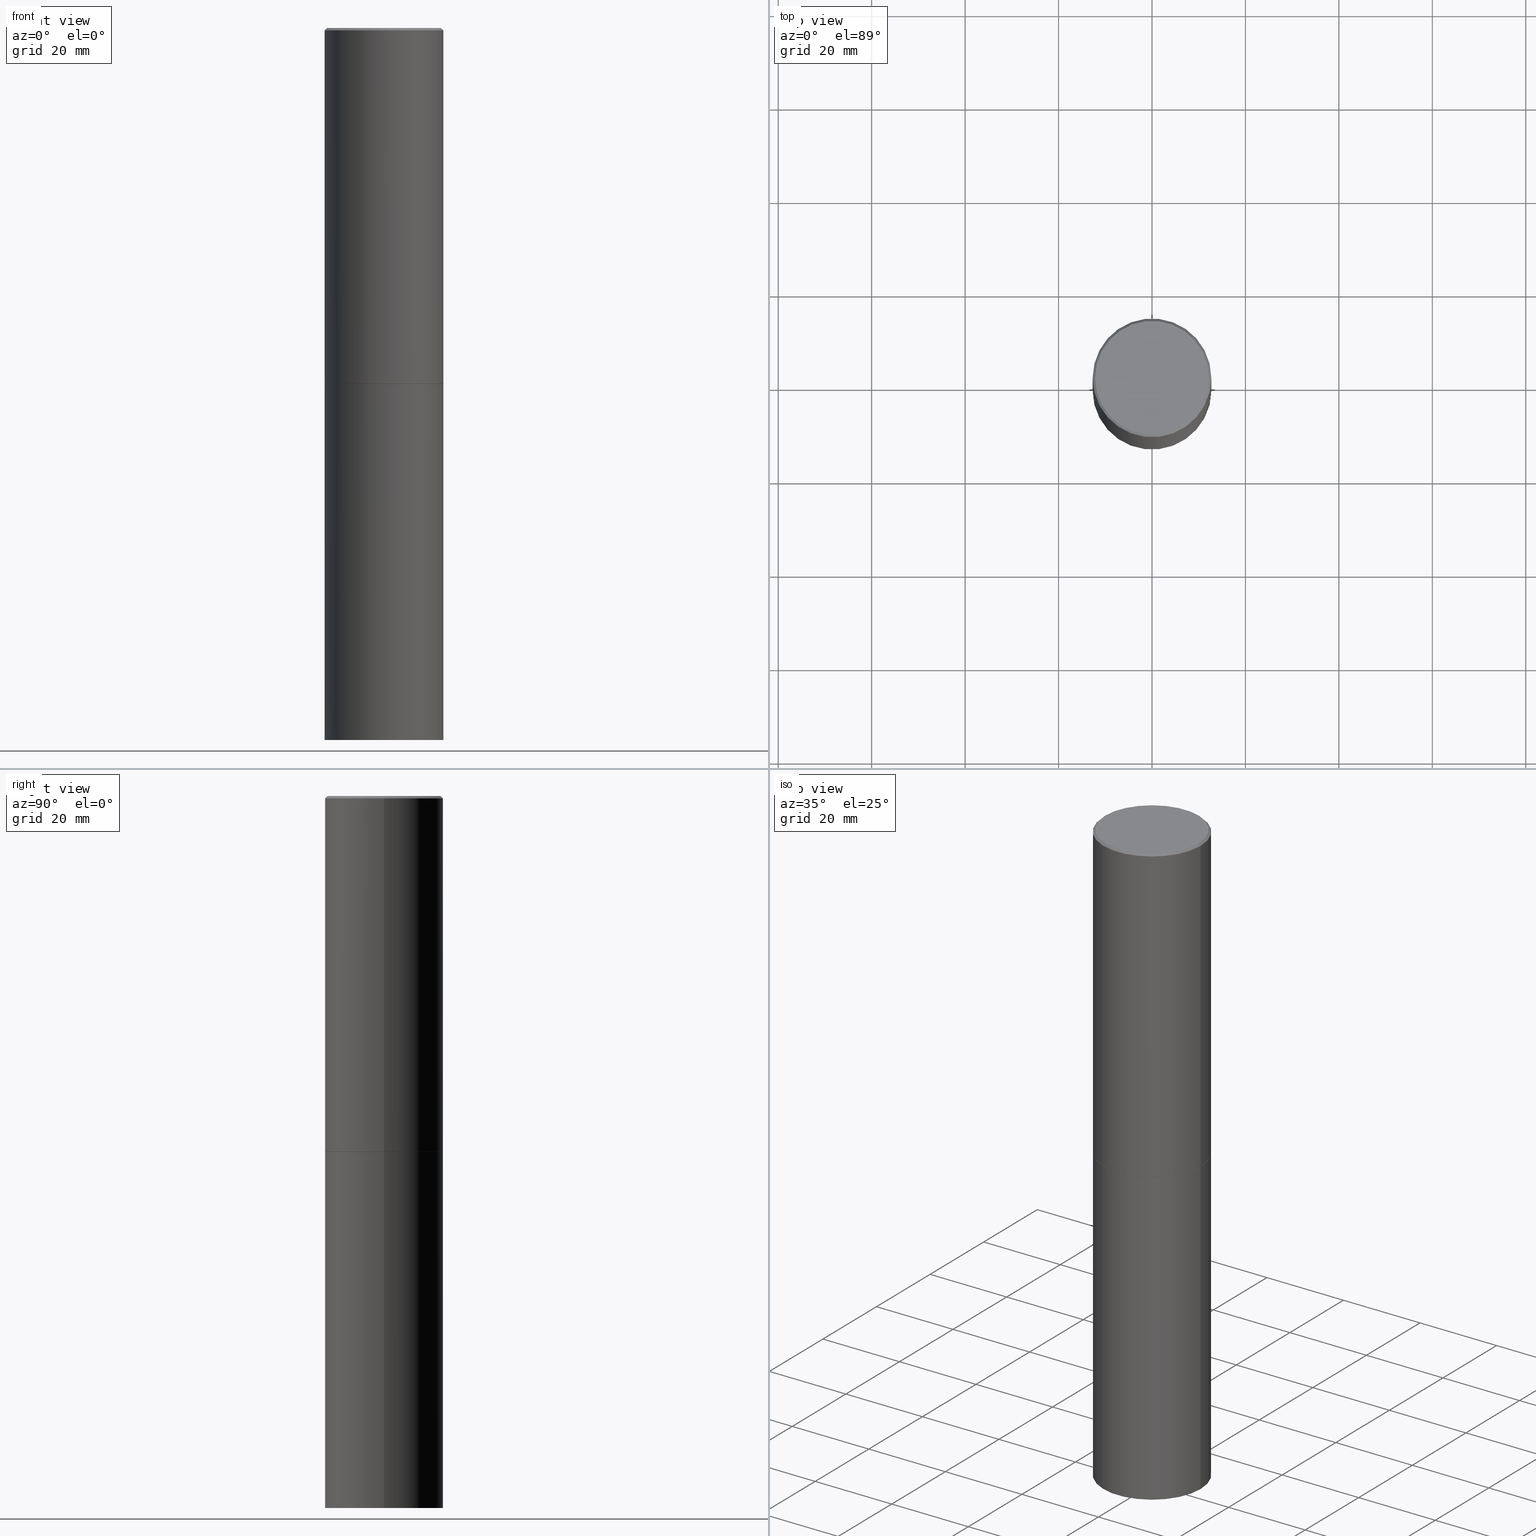
[diagram: canonical four-view strip — front | top / right | iso, engineering-drawing reading convention]
A machine part, canonical four-view strip (front | top / right | iso — engineering-drawing reading convention). The complete STEP part file that produces these views, byte-faithful:
ISO-10303-21;
HEADER;
FILE_DESCRIPTION (( 'STEP AP203' ),
    '1' );
FILE_NAME ('31869.STEP',
    '2023-03-21T20:33:02',
    ( '' ),
    ( '' ),
    'SwSTEP 2.0',
    'SolidWorks 2022',
    '' );
FILE_SCHEMA (( 'CONFIG_CONTROL_DESIGN' ));
ENDSEC;

DATA;
#1 = CALENDAR_DATE ( 2023, 21, 3 ) ;
#2 = ORIENTED_EDGE ( 'NONE', *, *, #33, .T. ) ;
#3 = DIRECTION ( 'NONE',  ( -2.445468806185136597E-29, 3.491481338843145583E-15, 1.000000000000000000 ) ) ;
#4 = EDGE_LOOP ( 'NONE', ( #335, #294, #114, #180 ) ) ;
#5 = CIRCLE ( 'NONE', #63, 0.4999999999999996669 ) ;
#6 = APPROVAL_ROLE ( '' ) ;
#7 = VERTEX_POINT ( 'NONE', #216 ) ;
#8 =( LENGTH_UNIT ( ) NAMED_UNIT ( * ) SI_UNIT ( $, .METRE. ) );
#9 = VERTEX_POINT ( 'NONE', #99 ) ;
#10 = CYLINDRICAL_SURFACE ( 'NONE', #184, 0.5000000000000000000 ) ;
#11 = ORIENTED_EDGE ( 'NONE', *, *, #312, .T. ) ;
#12 = AXIS2_PLACEMENT_3D ( 'NONE', #292, #171, #263 ) ;
#13 = LINE ( 'NONE', #53, #388 ) ;
#14 = SECURITY_CLASSIFICATION_LEVEL ( 'unclassified' ) ;
#15 = DIRECTION ( 'NONE',  ( 0.7071067811864267805, -2.468850131080992517E-15, 0.7071067811866682540 ) ) ;
#16 = CARTESIAN_POINT ( 'NONE',  ( 4.890937612370299433E-31, -6.982962677686328587E-17, -0.02000000000000010797 ) ) ;
#17 = CIRCLE ( 'NONE', #368, 0.4799999999999996492 ) ;
#18 = DIRECTION ( 'NONE',  ( -1.000000000000000000, 6.982962677686266711E-15, 0.000000000000000000 ) ) ;
#19 = CIRCLE ( 'NONE', #316, 0.4799999999999996492 ) ;
#20 = ADVANCED_FACE ( 'NONE', ( #126 ), #323, .F. ) ;
#21 = FACE_OUTER_BOUND ( 'NONE', #177, .T. ) ;
#22 = EDGE_CURVE ( 'NONE', #360, #145, #254, .T. ) ;
#23 = CARTESIAN_POINT ( 'NONE',  ( -0.4999999999999996669, 3.421651712066267691E-15, -0.02000000000000010797 ) ) ;
#24 = PERSON_AND_ORGANIZATION ( #81, #346 ) ;
#25 = FACE_OUTER_BOUND ( 'NONE', #305, .T. ) ;
#26 = AXIS2_PLACEMENT_3D ( 'NONE', #121, #175, #337 ) ;
#27 = PERSON_AND_ORGANIZATION ( #81, #346 ) ;
#28 = CARTESIAN_POINT ( 'NONE',  ( 4.890937612370299433E-31, -6.982962677686328587E-17, -0.02000000000000010797 ) ) ;
#29 = EDGE_CURVE ( 'NONE', #69, #146, #372, .T. ) ;
#30 = DIRECTION ( 'NONE',  ( -2.445468806185136597E-29, 3.491481338843145583E-15, 1.000000000000000000 ) ) ;
#31 = DIRECTION ( 'NONE',  ( 1.000000000000000000, -6.982962677686266711E-15, 0.000000000000000000 ) ) ;
#32 = ADVANCED_FACE ( 'NONE', ( #197 ), #206, .T. ) ;
#33 = EDGE_CURVE ( 'NONE', #7, #183, #45, .T. ) ;
#34 = APPROVAL_DATE_TIME ( #35, #229 ) ;
#35 = DATE_AND_TIME ( #298, #70 ) ;
#36 = VERTEX_POINT ( 'NONE', #44 ) ;
#37 = PERSON_AND_ORGANIZATION_ROLE ( 'creator' ) ;
#38 = ORIENTED_EDGE ( 'NONE', *, *, #133, .F. ) ;
#39 = CC_DESIGN_APPROVAL ( #50, ( #201 ) ) ;
#40 = COORDINATED_UNIVERSAL_TIME_OFFSET ( 5, 0, .BEHIND. ) ;
#41 = EDGE_LOOP ( 'NONE', ( #332, #299, #42, #339 ) ) ;
#42 = ORIENTED_EDGE ( 'NONE', *, *, #66, .F. ) ;
#43 = UNCERTAINTY_MEASURE_WITH_UNIT (LENGTH_MEASURE( 1.000000000000000082E-05 ), #65, 'distance_accuracy_value', 'NONE');
#44 = CARTESIAN_POINT ( 'NONE',  ( -0.4999999999999991673, -1.745740669421574566E-14, -6.000000000000000888 ) ) ;
#45 = CIRCLE ( 'NONE', #62, 0.5000000000000000000 ) ;
#46 = DATE_AND_TIME ( #317, #162 ) ;
#47 = LOCAL_TIME ( 16, 33, 2.000000000000000000, #265 ) ;
#48 = CARTESIAN_POINT ( 'NONE',  ( 1.108870314984995048E-27, -1.583172928714155233E-13, -45.34387485051596656 ) ) ;
#49 = CYLINDRICAL_SURFACE ( 'NONE', #310, 0.4999999999999998335 ) ;
#50 = APPROVAL ( #268, 'UNSPECIFIED' ) ;
#51 = CARTESIAN_POINT ( 'NONE',  ( 0.4999999999999998335, -3.491481338843132566E-15, 2.438088387897967336E-29 ) ) ;
#52 = AXIS2_PLACEMENT_3D ( 'NONE', #28, #293, #142 ) ;
#53 = CARTESIAN_POINT ( 'NONE',  ( 0.5000000000000000000, -3.491481338843133355E-15, 2.438088387897967896E-29 ) ) ;
#54 = CARTESIAN_POINT ( 'NONE',  ( 7.336406418555412032E-29, -1.047444401652943951E-14, -3.000000000000000888 ) ) ;
#55 = DATE_AND_TIME ( #289, #186 ) ;
#56 = DIRECTION ( 'NONE',  ( -2.445468806185136877E-29, 3.491481338843145188E-15, 1.000000000000000000 ) ) ;
#57 = DIRECTION ( 'NONE',  ( 1.000000000000000000, -6.982962677686269077E-15, 0.000000000000000000 ) ) ;
#58 = CLOSED_SHELL ( 'NONE', ( #210, #128, #32, #178, #378, #319, #196, #172 ) ) ;
#59 = CIRCLE ( 'NONE', #324, 0.4989999999999999991 ) ;
#60 = CYLINDRICAL_SURFACE ( 'NONE', #290, 0.4999999999999998335 ) ;
#61 = CARTESIAN_POINT ( 'NONE',  ( 4.890937612370299433E-31, -6.982962677686328587E-17, -0.02000000000000010797 ) ) ;
#62 = AXIS2_PLACEMENT_3D ( 'NONE', #376, #223, #315 ) ;
#63 = AXIS2_PLACEMENT_3D ( 'NONE', #16, #374, #78 ) ;
#64 = EDGE_LOOP ( 'NONE', ( #115, #340, #273, #119 ) ) ;
#65 =( CONVERSION_BASED_UNIT ( 'INCH', #301 ) LENGTH_UNIT ( ) NAMED_UNIT ( #366 ) );
#66 = EDGE_CURVE ( 'NONE', #146, #360, #274, .T. ) ;
#67 = ORIENTED_EDGE ( 'NONE', *, *, #133, .T. ) ;
#68 = PERSON_AND_ORGANIZATION ( #81, #346 ) ;
#69 = VERTEX_POINT ( 'NONE', #221 ) ;
#70 = LOCAL_TIME ( 16, 33, 2.000000000000000000, #40 ) ;
#71 = ORIENTED_EDGE ( 'NONE', *, *, #120, .F. ) ;
#72 = VERTEX_POINT ( 'NONE', #158 ) ;
#73 = FACE_OUTER_BOUND ( 'NONE', #213, .T. ) ;
#74 = CONICAL_SURFACE ( 'NONE', #231, 0.4989999999999999991, 0.7853981633972775267 ) ;
#75 = CARTESIAN_POINT ( 'NONE',  ( -5.848269620656593019E-18, -2.085739764137040965E-14, -5.973796110358482458 ) ) ;
#76 = MANIFOLD_SOLID_BREP ( 'Body-Move/Copy2[1]', #224 ) ;
#77 = CARTESIAN_POINT ( 'NONE',  ( -3.131554243005659264E-46, 4.471029511141341874E-32, 1.280553747030123384E-17 ) ) ;
#78 = DIRECTION ( 'NONE',  ( 1.000000000000000000, -6.982962677686266711E-15, 0.000000000000000000 ) ) ;
#79 = CIRCLE ( 'NONE', #95, 0.4989999999999999991 ) ;
#80 = DIRECTION ( 'NONE',  ( 2.445468806185136597E-29, -3.491481338843145583E-15, -1.000000000000000000 ) ) ;
#81 = PERSON ( 'UNSPECIFIED', 'UNSPECIFIED', 'UNSPECIFIED', ('UNSPECIFIED'), ('UNSPECIFIED'), ('UNSPECIFIED') ) ;
#82 = DIRECTION ( 'NONE',  ( -2.445468806185136597E-29, 3.491481338843145583E-15, 1.000000000000000000 ) ) ;
#83 = MANIFOLD_SOLID_BREP ( 'Body-Move/Copy2[2]', #58 ) ;
#84 = LINE ( 'NONE', #260, #106 ) ;
#85 = CARTESIAN_POINT ( 'NONE',  ( -0.5000000000000000000, 3.552713678800500929E-15, -2.459467545127452891E-29 ) ) ;
#86 = DIRECTION ( 'NONE',  ( -2.445468806185136597E-29, 3.491481338843145583E-15, 1.000000000000000000 ) ) ;
#87 = FACE_OUTER_BOUND ( 'NONE', #94, .T. ) ;
#88 = CARTESIAN_POINT ( 'NONE',  ( 0.000000000000000000, 0.000000000000000000, 0.000000000000000000 ) ) ;
#89 = ORIENTED_EDGE ( 'NONE', *, *, #222, .T. ) ;
#90 = VECTOR ( 'NONE', #130, 39.37007874015748854 ) ;
#91 = APPROVAL_PERSON_ORGANIZATION ( #27, #233, #190 ) ;
#92 = ORIENTED_EDGE ( 'NONE', *, *, #204, .F. ) ;
#93 = ORIENTED_EDGE ( 'NONE', *, *, #22, .T. ) ;
#94 = EDGE_LOOP ( 'NONE', ( #365, #208, #89, #139 ) ) ;
#95 = AXIS2_PLACEMENT_3D ( 'NONE', #381, #138, #390 ) ;
#96 = EDGE_LOOP ( 'NONE', ( #308, #211, #67, #209 ) ) ;
#97 = EDGE_CURVE ( 'NONE', #72, #7, #13, .T. ) ;
#98 = PLANE ( 'NONE',  #330 ) ;
#99 = CARTESIAN_POINT ( 'NONE',  ( -0.4799999999999996492, 3.386736898677836436E-15, 1.280553747027767124E-17 ) ) ;
#100 = AXIS2_PLACEMENT_3D ( 'NONE', #220, #193, #311 ) ;
#101 = AXIS2_PLACEMENT_3D ( 'NONE', #259, #174, #318 ) ;
#102 = CARTESIAN_POINT ( 'NONE',  ( -0.4999999999999996669, 3.421651712066267691E-15, -0.02000000000000010797 ) ) ;
#103 = DIRECTION ( 'NONE',  ( -2.445468806185136877E-29, 3.491481338843145188E-15, 1.000000000000000000 ) ) ;
#104 = CARTESIAN_POINT ( 'NONE',  ( 1.108870314984995048E-27, -1.583172928714155233E-13, -45.34387485051596656 ) ) ;
#105 = PERSON_AND_ORGANIZATION_ROLE ( 'classification_officer' ) ;
#106 = VECTOR ( 'NONE', #228, 39.37007874015748143 ) ;
#107 = CARTESIAN_POINT ( 'NONE',  ( -3.131554243005659264E-46, 4.471029511141341874E-32, 1.280553747030123384E-17 ) ) ;
#108 = COORDINATED_UNIVERSAL_TIME_OFFSET ( 5, 0, .BEHIND. ) ;
#109 = DIRECTION ( 'NONE',  ( -0.7071067811864267805, 7.493145998869918709E-15, 0.7071067811866682540 ) ) ;
#110 = PLANE ( 'NONE',  #12 ) ;
#111 = DIRECTION ( 'NONE',  ( 1.000000000000000000, -6.982962677686269077E-15, 0.000000000000000000 ) ) ;
#112 = FACE_OUTER_BOUND ( 'NONE', #189, .T. ) ;
#113 = DATE_AND_TIME ( #1, #47 ) ;
#114 = ORIENTED_EDGE ( 'NONE', *, *, #159, .T. ) ;
#115 = ORIENTED_EDGE ( 'NONE', *, *, #312, .F. ) ;
#116 = PERSON_AND_ORGANIZATION ( #81, #346 ) ;
#117 = ORIENTED_EDGE ( 'NONE', *, *, #120, .T. ) ;
#118 = FACE_OUTER_BOUND ( 'NONE', #64, .T. ) ;
#119 = ORIENTED_EDGE ( 'NONE', *, *, #199, .F. ) ;
#120 = EDGE_CURVE ( 'NONE', #154, #36, #344, .T. ) ;
#121 = CARTESIAN_POINT ( 'NONE',  ( 0.000000000000000000, 0.000000000000000000, 0.000000000000000000 ) ) ;
#122 = EDGE_CURVE ( 'NONE', #72, #36, #357, .T. ) ;
#123 = ORIENTED_EDGE ( 'NONE', *, *, #140, .F. ) ;
#124 = CARTESIAN_POINT ( 'NONE',  ( 0.5000000000000000000, -1.396243387403372828E-14, -2.999000000000000554 ) ) ;
#125 = APPROVAL_DATE_TIME ( #55, #233 ) ;
#126 = FACE_OUTER_BOUND ( 'NONE', #244, .T. ) ;
#127 = ORIENTED_EDGE ( 'NONE', *, *, #159, .F. ) ;
#128 = ADVANCED_FACE ( 'NONE', ( #21 ), #49, .T. ) ;
#129 = VECTOR ( 'NONE', #15, 39.37007874015748143 ) ;
#130 = DIRECTION ( 'NONE',  ( -0.9986295347545742773, 6.790662755453662155E-15, -0.05233595624293820026 ) ) ;
#131 = DIRECTION ( 'NONE',  ( 2.438088387897960049E-29, -3.491481338843145188E-15, -1.000000000000000000 ) ) ;
#132 = FACE_OUTER_BOUND ( 'NONE', #41, .T. ) ;
#133 = EDGE_CURVE ( 'NONE', #369, #145, #5, .T. ) ;
#134 = AXIS2_PLACEMENT_3D ( 'NONE', #342, #250, #18 ) ;
#135 = AXIS2_PLACEMENT_3D ( 'NONE', #232, #379, #169 ) ;
#136 = CARTESIAN_POINT ( 'NONE',  ( 7.336406418555412032E-29, -1.047444401652943951E-14, -3.000000000000000888 ) ) ;
#137 = CC_DESIGN_SECURITY_CLASSIFICATION ( #338, ( #201 ) ) ;
#138 = DIRECTION ( 'NONE',  ( -2.445468806185136597E-29, 3.491481338843145583E-15, 1.000000000000000000 ) ) ;
#139 = ORIENTED_EDGE ( 'NONE', *, *, #313, .T. ) ;
#140 = EDGE_CURVE ( 'NONE', #36, #72, #389, .T. ) ;
#141 = CARTESIAN_POINT ( 'NONE',  ( -0.5000000000000000000, -1.215895234599365439E-14, -3.000000000000000444 ) ) ;
#142 = DIRECTION ( 'NONE',  ( -1.000000000000000000, 6.982962677686266711E-15, 0.000000000000000000 ) ) ;
#143 = CIRCLE ( 'NONE', #135, 0.5000000000000000000 ) ;
#144 = DIRECTION ( 'NONE',  ( 1.000000000000000000, -6.982962677686266711E-15, 4.876176775795935793E-29 ) ) ;
#145 = VERTEX_POINT ( 'NONE', #102 ) ;
#146 = VERTEX_POINT ( 'NONE', #124 ) ;
#147 = PERSON_AND_ORGANIZATION ( #81, #346 ) ;
#148 = ORIENTED_EDGE ( 'NONE', *, *, #66, .T. ) ;
#149 = AXIS2_PLACEMENT_3D ( 'NONE', #61, #86, #31 ) ;
#150 = CALENDAR_DATE ( 2023, 21, 3 ) ;
#151 = VERTEX_POINT ( 'NONE', #343 ) ;
#152 = EDGE_CURVE ( 'NONE', #9, #302, #17, .T. ) ;
#153 = APPLICATION_PROTOCOL_DEFINITION ( 'international standard', 'config_control_design', 1994, #236 ) ;
#154 = VERTEX_POINT ( 'NONE', #194 ) ;
#155 = CARTESIAN_POINT ( 'NONE',  ( 7.333960949749226429E-29, -1.047095253519059492E-14, -2.999000000000000554 ) ) ;
#156 = CONICAL_SURFACE ( 'NONE', #380, 0.4989999999999999991, 0.7853981633972775267 ) ;
#157 = DATE_TIME_ROLE ( 'classification_date' ) ;
#158 = CARTESIAN_POINT ( 'NONE',  ( 0.4999999999999991673, -2.437913703194463533E-14, -6.000000000000000888 ) ) ;
#159 = EDGE_CURVE ( 'NONE', #146, #369, #314, .T. ) ;
#160 = DIRECTION ( 'NONE',  ( 1.000000000000000000, -6.982962677686267499E-15, 4.876176775795936353E-29 ) ) ;
#161 = DIRECTION ( 'NONE',  ( -2.445468806185136877E-29, 3.491481338843145188E-15, 1.000000000000000000 ) ) ;
#162 = LOCAL_TIME ( 16, 33, 2.000000000000000000, #248 ) ;
#163 = CC_DESIGN_APPROVAL ( #233, ( #338 ) ) ;
#164 = CARTESIAN_POINT ( 'NONE',  ( 3.351822085289405181E-15, 0.4799999999999996492, -1.669508273909558064E-15 ) ) ;
#165 = CC_DESIGN_PERSON_AND_ORGANIZATION_ASSIGNMENT ( #168, #105, ( #338 ) ) ;
#166 = ADVANCED_FACE ( 'NONE', ( #73 ), #304, .F. ) ;
#167 = DIRECTION ( 'NONE',  ( -2.445468806185136597E-29, 3.491481338843145583E-15, 1.000000000000000000 ) ) ;
#168 = PERSON_AND_ORGANIZATION ( #81, #346 ) ;
#169 = DIRECTION ( 'NONE',  ( 1.000000000000000000, -6.982962677686266711E-15, 0.000000000000000000 ) ) ;
#170 = APPROVAL_STATUS ( 'not_yet_approved' ) ;
#171 = DIRECTION ( 'NONE',  ( 2.438088387897960049E-29, -3.491481338843145188E-15, -1.000000000000000000 ) ) ;
#172 = ADVANCED_FACE ( 'NONE', ( #345 ), #98, .F. ) ;
#173 = CARTESIAN_POINT ( 'NONE',  ( 0.000000000000000000, 0.000000000000000000, 0.000000000000000000 ) ) ;
#174 = DIRECTION ( 'NONE',  ( -2.445468806185136597E-29, 3.491481338843145583E-15, 1.000000000000000000 ) ) ;
#175 = DIRECTION ( 'NONE',  ( -2.445468806185136597E-29, 3.491481338843145583E-15, 1.000000000000000000 ) ) ;
#176 = VECTOR ( 'NONE', #255, 39.37007874015748143 ) ;
#177 = EDGE_LOOP ( 'NONE', ( #148, #93, #38, #127 ) ) ;
#178 = ADVANCED_FACE ( 'NONE', ( #87 ), #252, .T. ) ;
#179 =( NAMED_UNIT ( * ) PLANE_ANGLE_UNIT ( ) SI_UNIT ( $, .RADIAN. ) );
#180 = ORIENTED_EDGE ( 'NONE', *, *, #313, .F. ) ;
#181 = PERSON_AND_ORGANIZATION ( #81, #346 ) ;
#182 = ORIENTED_EDGE ( 'NONE', *, *, #192, .T. ) ;
#183 = VERTEX_POINT ( 'NONE', #141 ) ;
#184 = AXIS2_PLACEMENT_3D ( 'NONE', #88, #3, #144 ) ;
#185 = AXIS2_PLACEMENT_3D ( 'NONE', #275, #371, #251 ) ;
#186 = LOCAL_TIME ( 16, 33, 2.000000000000000000, #108 ) ;
#187 = CARTESIAN_POINT ( 'NONE',  ( 0.000000000000000000, 0.000000000000000000, 0.000000000000000000 ) ) ;
#188 = EDGE_LOOP ( 'NONE', ( #245, #267 ) ) ;
#189 = EDGE_LOOP ( 'NONE', ( #238, #266 ) ) ;
#190 = APPROVAL_ROLE ( '' ) ;
#191 = CARTESIAN_POINT ( 'NONE',  ( -0.4999999999999998335, 3.552713678800499746E-15, -2.459467545127452330E-29 ) ) ;
#192 = EDGE_CURVE ( 'NONE', #151, #69, #79, .T. ) ;
#193 = DIRECTION ( 'NONE',  ( -2.445468806185136597E-29, 3.491481338843145583E-15, 1.000000000000000000 ) ) ;
#194 = CARTESIAN_POINT ( 'NONE',  ( 1.461281586724088411E-28, -2.085154937174960621E-14, -5.973796110358482458 ) ) ;
#195 = DIRECTION ( 'NONE',  ( 2.445468806185136597E-29, -3.491481338843145583E-15, -1.000000000000000000 ) ) ;
#196 = ADVANCED_FACE ( 'NONE', ( #112 ), #350, .F. ) ;
#197 = FACE_OUTER_BOUND ( 'NONE', #96, .T. ) ;
#198 = DIRECTION ( 'NONE',  ( -2.438088387897960049E-29, 3.491481338843145188E-15, 1.000000000000000000 ) ) ;
#199 = EDGE_CURVE ( 'NONE', #183, #7, #262, .T. ) ;
#200 = CARTESIAN_POINT ( 'NONE',  ( 7.336406418555412032E-29, -1.047444401652943951E-14, -3.000000000000000888 ) ) ;
#201 = PRODUCT_DEFINITION_FORMATION_WITH_SPECIFIED_SOURCE ( 'ANY', '', #348, .NOT_KNOWN. ) ;
#202 = CARTESIAN_POINT ( 'NONE',  ( 0.4999999999999996669, -3.500078625662626713E-15, -0.02000000000000010797 ) ) ;
#203 = DIRECTION ( 'NONE',  ( -2.445468806185136597E-29, 3.491481338843145583E-15, 1.000000000000000000 ) ) ;
#204 = EDGE_CURVE ( 'NONE', #151, #360, #322, .T. ) ;
#205 = APPROVAL_DATE_TIME ( #361, #50 ) ;
#206 = CONICAL_SURFACE ( 'NONE', #134, 0.4999999999999996669, 0.7853981633974450594 ) ;
#207 = APPROVAL_PERSON_ORGANIZATION ( #327, #229, #296 ) ;
#208 = ORIENTED_EDGE ( 'NONE', *, *, #152, .F. ) ;
#209 = ORIENTED_EDGE ( 'NONE', *, *, #222, .F. ) ;
#210 = ADVANCED_FACE ( 'NONE', ( #132 ), #156, .T. ) ;
#211 = ORIENTED_EDGE ( 'NONE', *, *, #264, .T. ) ;
#212 = APPLICATION_PROTOCOL_DEFINITION ( 'international standard', 'config_control_design', 1994, #261 ) ;
#213 = EDGE_LOOP ( 'NONE', ( #271, #117, #297 ) ) ;
#214 = VECTOR ( 'NONE', #161, 39.37007874015748143 ) ;
#215 = ORIENTED_EDGE ( 'NONE', *, *, #97, .F. ) ;
#216 = CARTESIAN_POINT ( 'NONE',  ( 0.5000000000000000000, -1.396592535537257129E-14, -3.000000000000000444 ) ) ;
#217 = CC_DESIGN_PERSON_AND_ORGANIZATION_ASSIGNMENT ( #24, #277, ( #201 ) ) ;
#218 = DIRECTION ( 'NONE',  ( 1.000000000000000000, -6.982962677686266711E-15, 0.000000000000000000 ) ) ;
#219 = VECTOR ( 'NONE', #349, 39.37007874015748854 ) ;
#220 = CARTESIAN_POINT ( 'NONE',  ( 1.467281283711081958E-28, -2.094888803305887271E-14, -6.000000000000000888 ) ) ;
#221 = CARTESIAN_POINT ( 'NONE',  ( 0.4989999999999999991, -1.395894239269488685E-14, -3.000000000000000888 ) ) ;
#222 = EDGE_CURVE ( 'NONE', #9, #145, #285, .T. ) ;
#223 = DIRECTION ( 'NONE',  ( -2.445468806185136597E-29, 3.491481338843145583E-15, 1.000000000000000000 ) ) ;
#224 = CLOSED_SHELL ( 'NONE', ( #383, #20, #166, #384, #257 ) ) ;
#225 =( GEOMETRIC_REPRESENTATION_CONTEXT ( 3 ) GLOBAL_UNCERTAINTY_ASSIGNED_CONTEXT ( ( #43 ) ) GLOBAL_UNIT_ASSIGNED_CONTEXT ( ( #65, #179, #331 ) ) REPRESENTATION_CONTEXT ( 'NONE', 'WORKASPACE' ) );
#226 = DIRECTION ( 'NONE',  ( -1.000000000000000000, 6.982962677686265922E-15, -4.876176775795935793E-29 ) ) ;
#227 = EDGE_CURVE ( 'NONE', #360, #146, #143, .T. ) ;
#228 = DIRECTION ( 'NONE',  ( 0.7071067811865452413, -7.319954787623248157E-15, -0.7071067811865497932 ) ) ;
#229 = APPROVAL ( #364, 'UNSPECIFIED' ) ;
#230 = CARTESIAN_POINT ( 'NONE',  ( -0.5000000000000000000, -1.717677402183226998E-15, -2.999000000000000554 ) ) ;
#231 = AXIS2_PLACEMENT_3D ( 'NONE', #136, #291, #57 ) ;
#232 = CARTESIAN_POINT ( 'NONE',  ( 7.333960949749226429E-29, -1.047095253519059492E-14, -2.999000000000000554 ) ) ;
#233 = APPROVAL ( #170, 'UNSPECIFIED' ) ;
#234 = CARTESIAN_POINT ( 'NONE',  ( 7.336406418555409790E-29, -1.047444401652943635E-14, -3.000000000000000444 ) ) ;
#235 = EDGE_CURVE ( 'NONE', #302, #9, #19, .T. ) ;
#236 = APPLICATION_CONTEXT ( 'configuration controlled 3d designs of mechanical parts and assemblies' ) ;
#237 = COORDINATED_UNIVERSAL_TIME_OFFSET ( 5, 0, .BEHIND. ) ;
#238 = ORIENTED_EDGE ( 'NONE', *, *, #280, .F. ) ;
#239 = DIRECTION ( 'NONE',  ( 1.000000000000000000, -6.982962677686267499E-15, 4.876176775795936353E-29 ) ) ;
#240 = ORIENTED_EDGE ( 'NONE', *, *, #33, .F. ) ;
#241 = PERSON_AND_ORGANIZATION_ROLE ( 'creator' ) ;
#242 = ORIENTED_EDGE ( 'NONE', *, *, #247, .T. ) ;
#243 = DATE_TIME_ROLE ( 'creation_date' ) ;
#244 = EDGE_LOOP ( 'NONE', ( #71, #242, #123 ) ) ;
#245 = ORIENTED_EDGE ( 'NONE', *, *, #152, .T. ) ;
#246 = AXIS2_PLACEMENT_3D ( 'NONE', #187, #306, #354 ) ;
#247 = EDGE_CURVE ( 'NONE', #154, #72, #326, .T. ) ;
#248 = COORDINATED_UNIVERSAL_TIME_OFFSET ( 5, 0, .BEHIND. ) ;
#249 = DIRECTION ( 'NONE',  ( -2.445468806185136597E-29, 3.491481338843145583E-15, 1.000000000000000000 ) ) ;
#250 = DIRECTION ( 'NONE',  ( 2.445468806185136597E-29, -3.491481338843145583E-15, -1.000000000000000000 ) ) ;
#251 = DIRECTION ( 'NONE',  ( 1.000000000000000000, -6.982962677686262766E-15, 0.000000000000000000 ) ) ;
#252 = CONICAL_SURFACE ( 'NONE', #52, 0.4999999999999996669, 0.7853981633974450594 ) ;
#253 = DIRECTION ( 'NONE',  ( -1.000000000000000000, 6.982962677686266711E-15, 0.000000000000000000 ) ) ;
#254 = LINE ( 'NONE', #191, #329 ) ;
#255 = DIRECTION ( 'NONE',  ( -0.7071067811865452413, 2.468850131082233000E-15, -0.7071067811865497932 ) ) ;
#256 = LOCAL_TIME ( 16, 33, 2.000000000000000000, #237 ) ;
#257 = ADVANCED_FACE ( 'NONE', ( #258 ), #110, .F. ) ;
#258 = FACE_OUTER_BOUND ( 'NONE', #362, .T. ) ;
#259 = CARTESIAN_POINT ( 'NONE',  ( 7.336406418555409790E-29, -1.047444401652943635E-14, -3.000000000000000444 ) ) ;
#260 = CARTESIAN_POINT ( 'NONE',  ( 0.4999999999999996669, -3.500078625662626713E-15, -0.02000000000000010797 ) ) ;
#261 = APPLICATION_CONTEXT ( 'configuration controlled 3d designs of mechanical parts and assemblies' ) ;
#262 = CIRCLE ( 'NONE', #101, 0.5000000000000000000 ) ;
#263 = DIRECTION ( 'NONE',  ( -1.000000000000000000, 6.982962677686265922E-15, -4.876176775795935793E-29 ) ) ;
#264 = EDGE_CURVE ( 'NONE', #302, #369, #84, .T. ) ;
#265 = COORDINATED_UNIVERSAL_TIME_OFFSET ( 5, 0, .BEHIND. ) ;
#266 = ORIENTED_EDGE ( 'NONE', *, *, #192, .F. ) ;
#267 = ORIENTED_EDGE ( 'NONE', *, *, #235, .T. ) ;
#268 = APPROVAL_STATUS ( 'not_yet_approved' ) ;
#269 = CC_DESIGN_DATE_AND_TIME_ASSIGNMENT ( #46, #157, ( #338 ) ) ;
#270 = AXIS2_PLACEMENT_3D ( 'NONE', #104, #195, #253 ) ;
#271 = ORIENTED_EDGE ( 'NONE', *, *, #247, .F. ) ;
#272 = ORIENTED_EDGE ( 'NONE', *, *, #122, .T. ) ;
#273 = ORIENTED_EDGE ( 'NONE', *, *, #97, .T. ) ;
#274 = CIRCLE ( 'NONE', #282, 0.5000000000000000000 ) ;
#275 = CARTESIAN_POINT ( 'NONE',  ( 1.467281283711081958E-28, -2.094888803305887271E-14, -6.000000000000000888 ) ) ;
#276 = CIRCLE ( 'NONE', #149, 0.4999999999999996669 ) ;
#277 = PERSON_AND_ORGANIZATION_ROLE ( 'design_supplier' ) ;
#278 = DIRECTION ( 'NONE',  ( -2.445468806185136597E-29, 3.491481338843145583E-15, 1.000000000000000000 ) ) ;
#279 = DIRECTION ( 'NONE',  ( -2.445468806185136877E-29, 3.491481338843145188E-15, 1.000000000000000000 ) ) ;
#280 = EDGE_CURVE ( 'NONE', #69, #151, #59, .T. ) ;
#281 = CARTESIAN_POINT ( 'NONE',  ( 0.4989999999999999991, -1.395894239269488685E-14, -3.000000000000000888 ) ) ;
#282 = AXIS2_PLACEMENT_3D ( 'NONE', #155, #278, #218 ) ;
#283 = APPROVAL_PERSON_ORGANIZATION ( #147, #50, #6 ) ;
#284 = DIRECTION ( 'NONE',  ( 1.000000000000000000, -6.982962677686267499E-15, 4.876036955247132767E-29 ) ) ;
#285 = LINE ( 'NONE', #23, #176 ) ;
#286 = CC_DESIGN_PERSON_AND_ORGANIZATION_ASSIGNMENT ( #116, #241, ( #201 ) ) ;
#287 = DESIGN_CONTEXT ( 'detailed design', #261, 'design' ) ;
#288 = DIRECTION ( 'NONE',  ( 1.000000000000000000, -6.982962677686269077E-15, 0.000000000000000000 ) ) ;
#289 = CALENDAR_DATE ( 2023, 21, 3 ) ;
#290 = AXIS2_PLACEMENT_3D ( 'NONE', #173, #203, #239 ) ;
#291 = DIRECTION ( 'NONE',  ( -2.445468806185136597E-29, 3.491481338843145583E-15, 1.000000000000000000 ) ) ;
#292 = CARTESIAN_POINT ( 'NONE',  ( 3.491481338843206325E-15, 0.4999999999999895639, -3.000000000000001332 ) ) ;
#293 = DIRECTION ( 'NONE',  ( 2.445468806185136597E-29, -3.491481338843145583E-15, -1.000000000000000000 ) ) ;
#294 = ORIENTED_EDGE ( 'NONE', *, *, #227, .T. ) ;
#295 = VECTOR ( 'NONE', #56, 39.37007874015748143 ) ;
#296 = APPROVAL_ROLE ( '' ) ;
#297 = ORIENTED_EDGE ( 'NONE', *, *, #122, .F. ) ;
#298 = CALENDAR_DATE ( 2023, 21, 3 ) ;
#299 = ORIENTED_EDGE ( 'NONE', *, *, #204, .T. ) ;
#300 = CC_DESIGN_DATE_AND_TIME_ASSIGNMENT ( #113, #243, ( #336 ) ) ;
#301 = LENGTH_MEASURE_WITH_UNIT ( LENGTH_MEASURE( 0.02539999999999999897 ), #8 );
#302 = VERTEX_POINT ( 'NONE', #352 ) ;
#303 = MECHANICAL_CONTEXT ( 'NONE', #236, 'mechanical' ) ;
#304 = CONICAL_SURFACE ( 'NONE', #270, 751.2258538476485228, 1.518436449235072372 ) ;
#305 = EDGE_LOOP ( 'NONE', ( #92, #182, #334, #307 ) ) ;
#306 = DIRECTION ( 'NONE',  ( 0.000000000000000000, 0.000000000000000000, 1.000000000000000000 ) ) ;
#307 = ORIENTED_EDGE ( 'NONE', *, *, #227, .F. ) ;
#308 = ORIENTED_EDGE ( 'NONE', *, *, #235, .F. ) ;
#309 = DIRECTION ( 'NONE',  ( -1.000000000000000000, 6.982962677686266711E-15, 0.000000000000000000 ) ) ;
#310 = AXIS2_PLACEMENT_3D ( 'NONE', #341, #377, #160 ) ;
#311 = DIRECTION ( 'NONE',  ( 1.000000000000000000, -6.982962677686262766E-15, 0.000000000000000000 ) ) ;
#312 = EDGE_CURVE ( 'NONE', #36, #183, #320, .T. ) ;
#313 = EDGE_CURVE ( 'NONE', #145, #369, #276, .T. ) ;
#314 = LINE ( 'NONE', #51, #214 ) ;
#315 = DIRECTION ( 'NONE',  ( 1.000000000000000000, -6.982962677686266711E-15, 0.000000000000000000 ) ) ;
#316 = AXIS2_PLACEMENT_3D ( 'NONE', #107, #30, #385 ) ;
#317 = CALENDAR_DATE ( 2023, 21, 3 ) ;
#318 = DIRECTION ( 'NONE',  ( 1.000000000000000000, -6.982962677686266711E-15, 0.000000000000000000 ) ) ;
#319 = ADVANCED_FACE ( 'NONE', ( #25 ), #74, .T. ) ;
#320 = LINE ( 'NONE', #85, #295 ) ;
#321 = EDGE_LOOP ( 'NONE', ( #272, #11, #240, #215 ) ) ;
#322 = LINE ( 'NONE', #353, #358 ) ;
#323 = CONICAL_SURFACE ( 'NONE', #373, 751.2258538476485228, 1.518436449235072372 ) ;
#324 = AXIS2_PLACEMENT_3D ( 'NONE', #200, #82, #288 ) ;
#325 = FACE_OUTER_BOUND ( 'NONE', #4, .T. ) ;
#326 = LINE ( 'NONE', #347, #219 ) ;
#327 = PERSON_AND_ORGANIZATION ( #81, #346 ) ;
#328 = ADVANCED_BREP_SHAPE_REPRESENTATION ( '31869', ( #76, #83, #246 ), #225 ) ;
#329 = VECTOR ( 'NONE', #279, 39.37007874015748143 ) ;
#330 = AXIS2_PLACEMENT_3D ( 'NONE', #164, #131, #226 ) ;
#331 =( NAMED_UNIT ( * ) SI_UNIT ( $, .STERADIAN. ) SOLID_ANGLE_UNIT ( ) );
#332 = ORIENTED_EDGE ( 'NONE', *, *, #280, .T. ) ;
#333 = PERSON_AND_ORGANIZATION_ROLE ( 'design_owner' ) ;
#334 = ORIENTED_EDGE ( 'NONE', *, *, #29, .T. ) ;
#335 = ORIENTED_EDGE ( 'NONE', *, *, #22, .F. ) ;
#336 = PRODUCT_DEFINITION ( 'UNKNOWN', '', #201, #287 ) ;
#337 = DIRECTION ( 'NONE',  ( 1.000000000000000000, -6.982962677686266711E-15, 4.876176775795935793E-29 ) ) ;
#338 = SECURITY_CLASSIFICATION ( '', '', #14 ) ;
#339 = ORIENTED_EDGE ( 'NONE', *, *, #29, .F. ) ;
#340 = ORIENTED_EDGE ( 'NONE', *, *, #140, .T. ) ;
#341 = CARTESIAN_POINT ( 'NONE',  ( 0.000000000000000000, 0.000000000000000000, 0.000000000000000000 ) ) ;
#342 = CARTESIAN_POINT ( 'NONE',  ( 4.890937612370299433E-31, -6.982962677686328587E-17, -0.02000000000000010797 ) ) ;
#343 = CARTESIAN_POINT ( 'NONE',  ( -0.4989999999999999991, -6.923537310738316397E-15, -3.000000000000000888 ) ) ;
#344 = LINE ( 'NONE', #75, #90 ) ;
#345 = FACE_OUTER_BOUND ( 'NONE', #188, .T. ) ;
#346 = ORGANIZATION ( 'UNSPECIFIED', 'UNSPECIFIED', '' ) ;
#347 = CARTESIAN_POINT ( 'NONE',  ( 5.848269620948768147E-18, -2.085739764137040965E-14, -5.973796110358482458 ) ) ;
#348 = PRODUCT ( '31869', '31869', '', ( #303 ) ) ;
#349 = DIRECTION ( 'NONE',  ( 0.9986295347545742773, -7.033825938272001856E-15, -0.05233595624293820026 ) ) ;
#350 = PLANE ( 'NONE',  #351 ) ;
#351 = AXIS2_PLACEMENT_3D ( 'NONE', #234, #198, #387 ) ;
#352 = CARTESIAN_POINT ( 'NONE',  ( 0.4799999999999996492, -3.396558832296479732E-15, 1.280553747032483033E-17 ) ) ;
#353 = CARTESIAN_POINT ( 'NONE',  ( -0.4989999999999999991, -6.928835765086538799E-15, -3.000000000000000888 ) ) ;
#354 = DIRECTION ( 'NONE',  ( 1.000000000000000000, 0.000000000000000000, 0.000000000000000000 ) ) ;
#355 = CC_DESIGN_PERSON_AND_ORGANIZATION_ASSIGNMENT ( #181, #37, ( #336 ) ) ;
#356 = ORIENTED_EDGE ( 'NONE', *, *, #199, .T. ) ;
#357 = CIRCLE ( 'NONE', #100, 0.5000000000000000000 ) ;
#358 = VECTOR ( 'NONE', #109, 39.37007874015748143 ) ;
#359 = CYLINDRICAL_SURFACE ( 'NONE', #26, 0.5000000000000000000 ) ;
#360 = VERTEX_POINT ( 'NONE', #230 ) ;
#361 = DATE_AND_TIME ( #150, #256 ) ;
#362 = EDGE_LOOP ( 'NONE', ( #2, #356 ) ) ;
#363 = PRODUCT_RELATED_PRODUCT_CATEGORY ( 'detail', '', ( #348 ) ) ;
#364 = APPROVAL_STATUS ( 'not_yet_approved' ) ;
#365 = ORIENTED_EDGE ( 'NONE', *, *, #264, .F. ) ;
#366 = DIMENSIONAL_EXPONENTS ( 1.000000000000000000, 0.000000000000000000, 0.000000000000000000, 0.000000000000000000, 0.000000000000000000, 0.000000000000000000, 0.000000000000000000 ) ;
#367 = FACE_OUTER_BOUND ( 'NONE', #321, .T. ) ;
#368 = AXIS2_PLACEMENT_3D ( 'NONE', #77, #249, #284 ) ;
#369 = VERTEX_POINT ( 'NONE', #202 ) ;
#370 = SHAPE_DEFINITION_REPRESENTATION ( #382, #328 ) ;
#371 = DIRECTION ( 'NONE',  ( -2.445468806185136597E-29, 3.491481338843145583E-15, 1.000000000000000000 ) ) ;
#372 = LINE ( 'NONE', #281, #129 ) ;
#373 = AXIS2_PLACEMENT_3D ( 'NONE', #48, #80, #309 ) ;
#374 = DIRECTION ( 'NONE',  ( -2.445468806185136597E-29, 3.491481338843145583E-15, 1.000000000000000000 ) ) ;
#375 = CC_DESIGN_APPROVAL ( #229, ( #336 ) ) ;
#376 = CARTESIAN_POINT ( 'NONE',  ( 7.336406418555409790E-29, -1.047444401652943635E-14, -3.000000000000000444 ) ) ;
#377 = DIRECTION ( 'NONE',  ( -2.445468806185136597E-29, 3.491481338843145583E-15, 1.000000000000000000 ) ) ;
#378 = ADVANCED_FACE ( 'NONE', ( #325 ), #60, .T. ) ;
#379 = DIRECTION ( 'NONE',  ( -2.445468806185136597E-29, 3.491481338843145583E-15, 1.000000000000000000 ) ) ;
#380 = AXIS2_PLACEMENT_3D ( 'NONE', #54, #167, #111 ) ;
#381 = CARTESIAN_POINT ( 'NONE',  ( 7.336406418555412032E-29, -1.047444401652943951E-14, -3.000000000000000888 ) ) ;
#382 = PRODUCT_DEFINITION_SHAPE ( 'NONE', 'NONE',  #336 ) ;
#383 = ADVANCED_FACE ( 'NONE', ( #367 ), #10, .T. ) ;
#384 = ADVANCED_FACE ( 'NONE', ( #118 ), #359, .T. ) ;
#385 = DIRECTION ( 'NONE',  ( 1.000000000000000000, -6.982962677686267499E-15, 4.876036955247132767E-29 ) ) ;
#386 = CC_DESIGN_PERSON_AND_ORGANIZATION_ASSIGNMENT ( #68, #333, ( #348 ) ) ;
#387 = DIRECTION ( 'NONE',  ( 1.000000000000000000, -6.982962677686265922E-15, 4.876176775795935793E-29 ) ) ;
#388 = VECTOR ( 'NONE', #103, 39.37007874015748143 ) ;
#389 = CIRCLE ( 'NONE', #185, 0.5000000000000000000 ) ;
#390 = DIRECTION ( 'NONE',  ( 1.000000000000000000, -6.982962677686269077E-15, 0.000000000000000000 ) ) ;
ENDSEC;
END-ISO-10303-21;
